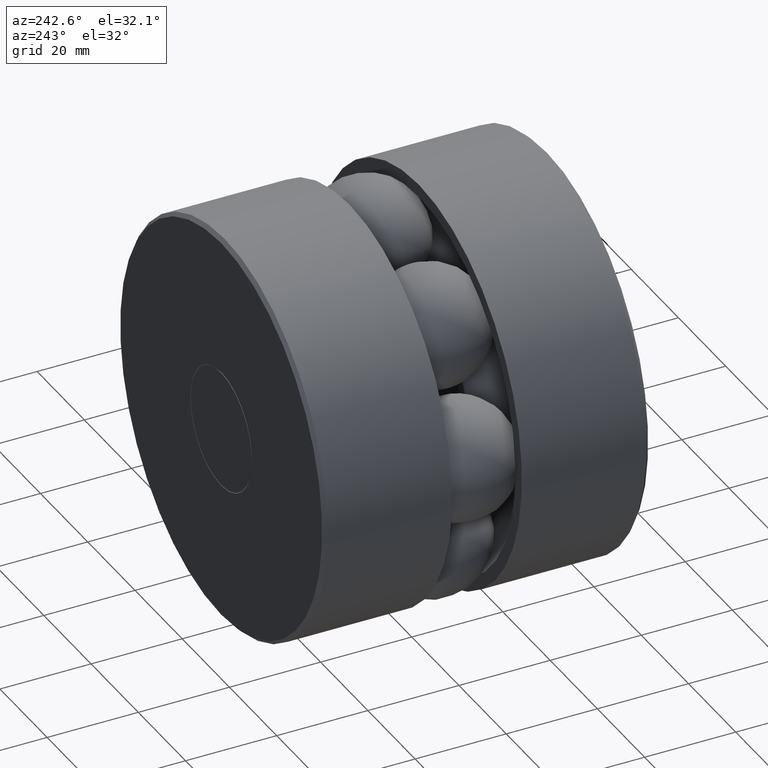
[diagram: clean part render]
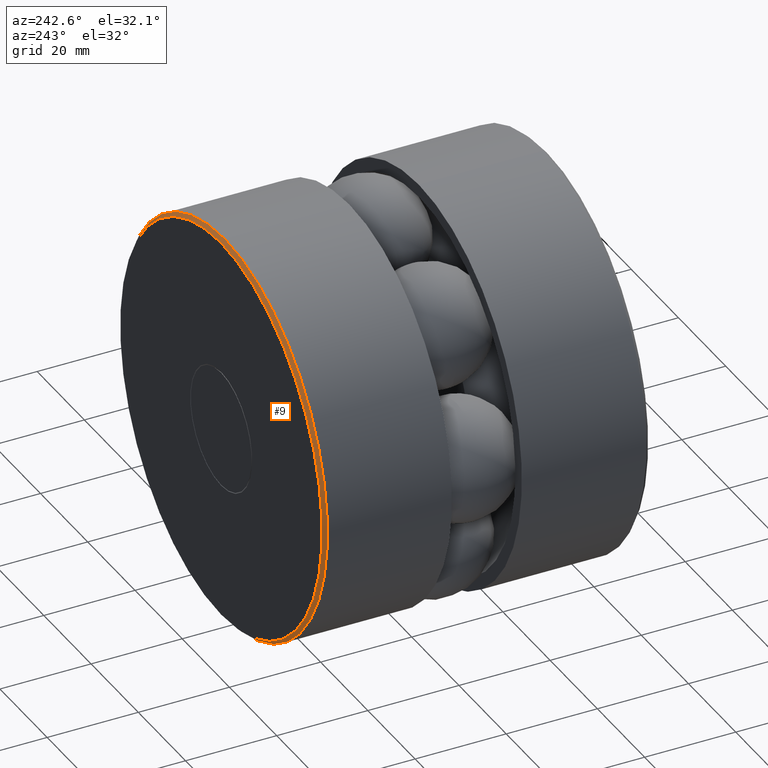
[diagram: same view with one face highlighted and labeled with its STEP entity id]
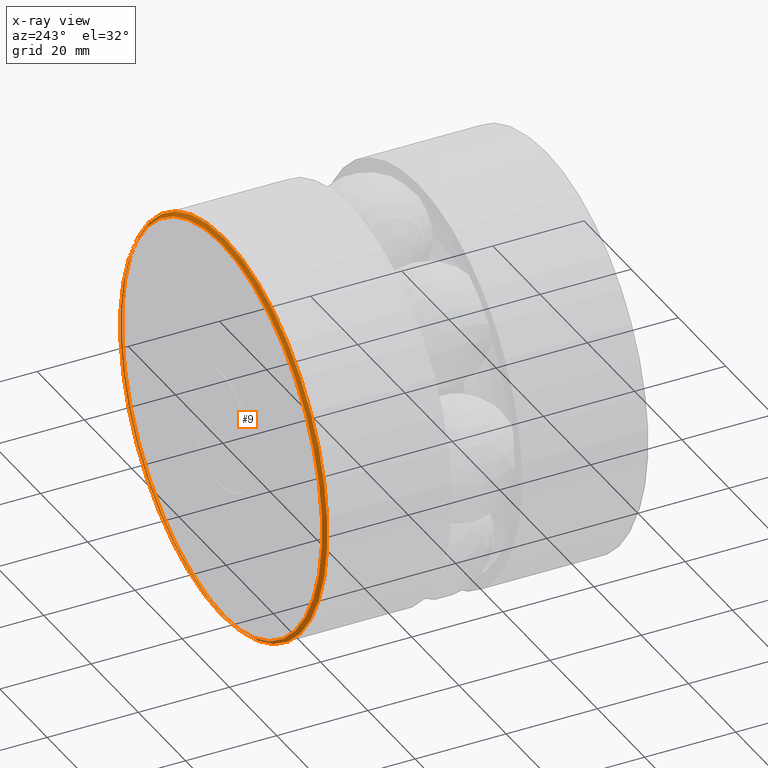
[diagram: x-ray of the same camera — body ghosted, the highlighted face saturated]
A machine part, auxiliary view. The second image highlights one B-rep face of the part: STEP entity #9.
The next image is the same camera in x-ray: the body ghosted, the highlighted face saturated — about 0% of this face is hidden behind the body in this view.
In plain terms, the highlighted conical surface has half-angle 45 deg.
Its self-contained STEP definition (entity closure, byte-faithful):
#1 = FACE_OUTER_BOUND ( 'NONE', #273, .T. ) ;
#9 = ADVANCED_FACE ( 'NONE', ( #1, #312 ), #64, .T. ) ;
#14 = AXIS2_PLACEMENT_3D ( 'NONE', #215, #247, #243 ) ;
#27 = EDGE_CURVE ( 'NONE', #235, #235, #402, .T. ) ;
#64 = CONICAL_SURFACE ( 'NONE', #494, 1.682000000000000600, 0.7853981633974346200 ) ;
#75 = CARTESIAN_POINT ( 'NONE',  ( 0.0000000000000000000, 2.782999999999999900, 1.712000000000000200 ) ) ;
#107 = CIRCLE ( 'NONE', #136, 1.712000000000000200 ) ;
#136 = AXIS2_PLACEMENT_3D ( 'NONE', #448, #440, #437 ) ;
#155 = CARTESIAN_POINT ( 'NONE',  ( 0.0000000000000000000, 2.813000000000000200, 1.682000000000000600 ) ) ;
#215 = CARTESIAN_POINT ( 'NONE',  ( 0.0000000000000000000, 2.813000000000000200, 0.0000000000000000000 ) ) ;
#235 = VERTEX_POINT ( 'NONE', #155 ) ;
#243 = DIRECTION ( 'NONE',  ( 0.0000000000000000000, 0.0000000000000000000, 1.000000000000000000 ) ) ;
#247 = DIRECTION ( 'NONE',  ( -0.0000000000000000000, 1.000000000000000000, -0.0000000000000000000 ) ) ;
#256 = ORIENTED_EDGE ( 'NONE', *, *, #27, .F. ) ;
#273 = EDGE_LOOP ( 'NONE', ( #303 ) ) ;
#276 = EDGE_LOOP ( 'NONE', ( #256 ) ) ;
#277 = EDGE_CURVE ( 'NONE', #500, #500, #107, .T. ) ;
#303 = ORIENTED_EDGE ( 'NONE', *, *, #277, .T. ) ;
#312 = FACE_BOUND ( 'NONE', #276, .T. ) ;
#349 = DIRECTION ( 'NONE',  ( 0.0000000000000000000, -1.000000000000000000, 0.0000000000000000000 ) ) ;
#393 = DIRECTION ( 'NONE',  ( 0.0000000000000000000, 0.0000000000000000000, -1.000000000000000000 ) ) ;
#402 = CIRCLE ( 'NONE', #14, 1.682000000000000600 ) ;
#430 = CARTESIAN_POINT ( 'NONE',  ( 0.0000000000000000000, 2.813000000000000200, 0.0000000000000000000 ) ) ;
#437 = DIRECTION ( 'NONE',  ( 0.0000000000000000000, 0.0000000000000000000, 1.000000000000000000 ) ) ;
#440 = DIRECTION ( 'NONE',  ( -0.0000000000000000000, 1.000000000000000000, -0.0000000000000000000 ) ) ;
#448 = CARTESIAN_POINT ( 'NONE',  ( 0.0000000000000000000, 2.782999999999999900, 0.0000000000000000000 ) ) ;
#494 = AXIS2_PLACEMENT_3D ( 'NONE', #430, #349, #393 ) ;
#500 = VERTEX_POINT ( 'NONE', #75 ) ;